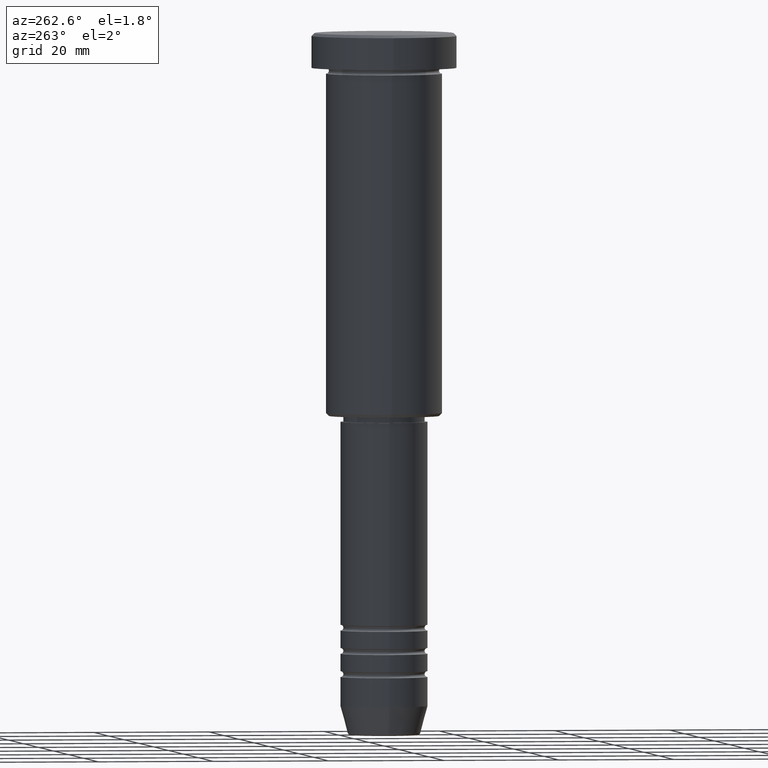
[diagram: clean part render]
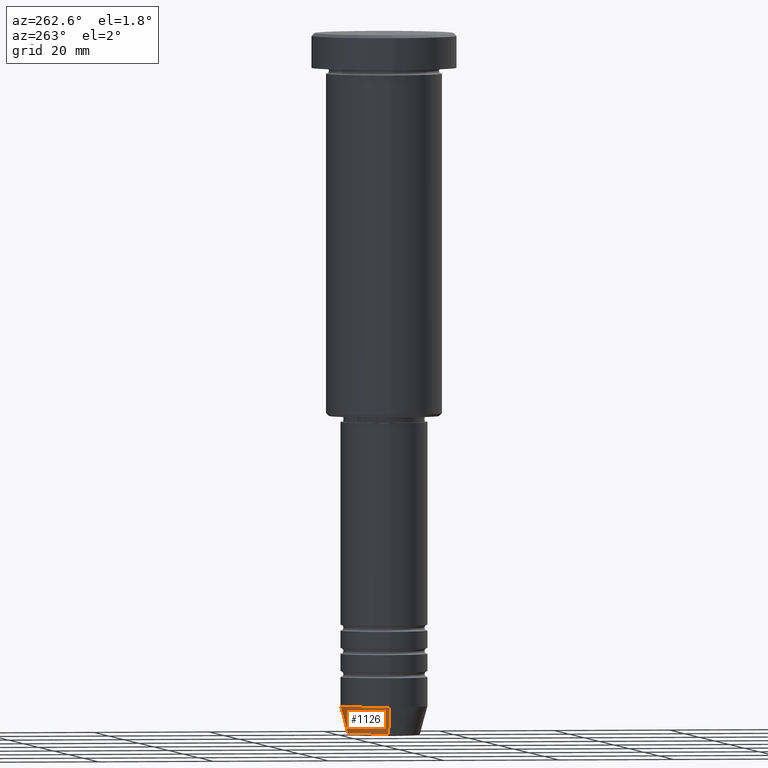
[diagram: same view with one face highlighted and labeled with its STEP entity id]
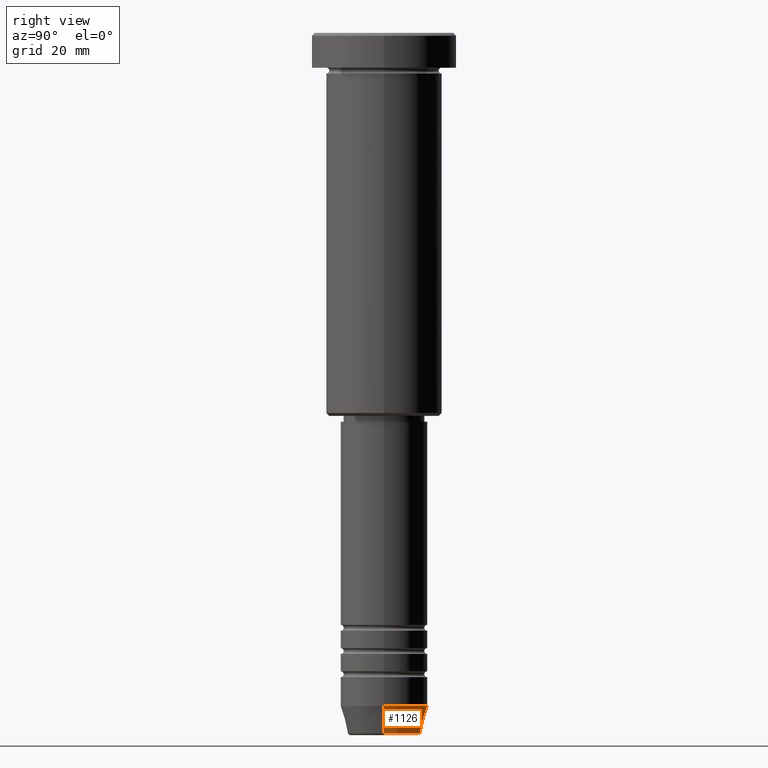
[diagram: same view with one face highlighted and labeled with its STEP entity id]
A machine part, auxiliary view. The second image highlights one B-rep face of the part: STEP entity #1126.
A second angle (right view) of the same face is appended — the face is thin or edge-on in the first view.
In plain terms, the highlighted conical surface has half-angle 15 deg.
Its self-contained STEP definition (entity closure, byte-faithful):
#10 = LINE ( 'NONE', #89, #65 ) ;
#33 = DIRECTION ( 'NONE',  ( 0.2588190451025213501, 0.000000000000000000, 0.9659258262890680902 ) ) ;
#34 = CIRCLE ( 'NONE', #880, 6.259553456999438659 ) ;
#65 = VECTOR ( 'NONE', #477, 1000.000000000000000 ) ;
#89 = CARTESIAN_POINT ( 'NONE',  ( -7.500000000000000000, 9.184850993605147944E-16, -116.0000000000000000 ) ) ;
#152 = EDGE_CURVE ( 'NONE', #793, #621, #10, .T. ) ;
#166 = FACE_OUTER_BOUND ( 'NONE', #1121, .T. ) ;
#184 = CONICAL_SURFACE ( 'NONE', #453, 7.500000000000000000, 0.2617993877991500740 ) ;
#299 = VECTOR ( 'NONE', #33, 1000.000000000000000 ) ;
#317 = LINE ( 'NONE', #884, #299 ) ;
#367 = CARTESIAN_POINT ( 'NONE',  ( 7.500000000000000000, 0.000000000000000000, -116.0000000000000000 ) ) ;
#396 = DIRECTION ( 'NONE',  ( 1.000000000000000000, 0.000000000000000000, 0.000000000000000000 ) ) ;
#431 = CIRCLE ( 'NONE', #842, 7.500000000000000000 ) ;
#453 = AXIS2_PLACEMENT_3D ( 'NONE', #1086, #891, #1179 ) ;
#477 = DIRECTION ( 'NONE',  ( -0.2588190451025213501, 3.169619151431772337E-17, 0.9659258262890680902 ) ) ;
#505 = CARTESIAN_POINT ( 'NONE',  ( 6.259553456999438659, 0.000000000000000000, -120.6294095225512564 ) ) ;
#600 = CARTESIAN_POINT ( 'NONE',  ( 0.000000000000000000, 0.000000000000000000, -120.6294095225512564 ) ) ;
#614 = ORIENTED_EDGE ( 'NONE', *, *, #973, .F. ) ;
#621 = VERTEX_POINT ( 'NONE', #911 ) ;
#694 = VERTEX_POINT ( 'NONE', #367 ) ;
#763 = CARTESIAN_POINT ( 'NONE',  ( -6.259553456999438659, 8.425296549405629486E-16, -120.6294095225512564 ) ) ;
#789 = DIRECTION ( 'NONE',  ( -0.000000000000000000, -0.000000000000000000, 1.000000000000000000 ) ) ;
#793 = VERTEX_POINT ( 'NONE', #763 ) ;
#809 = ORIENTED_EDGE ( 'NONE', *, *, #941, .F. ) ;
#815 = ORIENTED_EDGE ( 'NONE', *, *, #152, .T. ) ;
#840 = ORIENTED_EDGE ( 'NONE', *, *, #903, .T. ) ;
#842 = AXIS2_PLACEMENT_3D ( 'NONE', #1055, #1140, #396 ) ;
#880 = AXIS2_PLACEMENT_3D ( 'NONE', #600, #789, #970 ) ;
#884 = CARTESIAN_POINT ( 'NONE',  ( 7.500000000000000000, 0.000000000000000000, -116.0000000000000000 ) ) ;
#891 = DIRECTION ( 'NONE',  ( -0.000000000000000000, -0.000000000000000000, 1.000000000000000000 ) ) ;
#903 = EDGE_CURVE ( 'NONE', #1023, #793, #34, .T. ) ;
#911 = CARTESIAN_POINT ( 'NONE',  ( -7.500000000000000000, 9.184850993605147944E-16, -116.0000000000000000 ) ) ;
#941 = EDGE_CURVE ( 'NONE', #1023, #694, #317, .T. ) ;
#970 = DIRECTION ( 'NONE',  ( 1.000000000000000000, 0.000000000000000000, 0.000000000000000000 ) ) ;
#973 = EDGE_CURVE ( 'NONE', #694, #621, #431, .T. ) ;
#1023 = VERTEX_POINT ( 'NONE', #505 ) ;
#1055 = CARTESIAN_POINT ( 'NONE',  ( 0.000000000000000000, 0.000000000000000000, -116.0000000000000000 ) ) ;
#1086 = CARTESIAN_POINT ( 'NONE',  ( 0.000000000000000000, 0.000000000000000000, -116.0000000000000000 ) ) ;
#1121 = EDGE_LOOP ( 'NONE', ( #840, #815, #614, #809 ) ) ;
#1126 = ADVANCED_FACE ( 'NONE', ( #166 ), #184, .T. ) ;
#1140 = DIRECTION ( 'NONE',  ( -0.000000000000000000, -0.000000000000000000, 1.000000000000000000 ) ) ;
#1179 = DIRECTION ( 'NONE',  ( 1.000000000000000000, 0.000000000000000000, 0.000000000000000000 ) ) ;